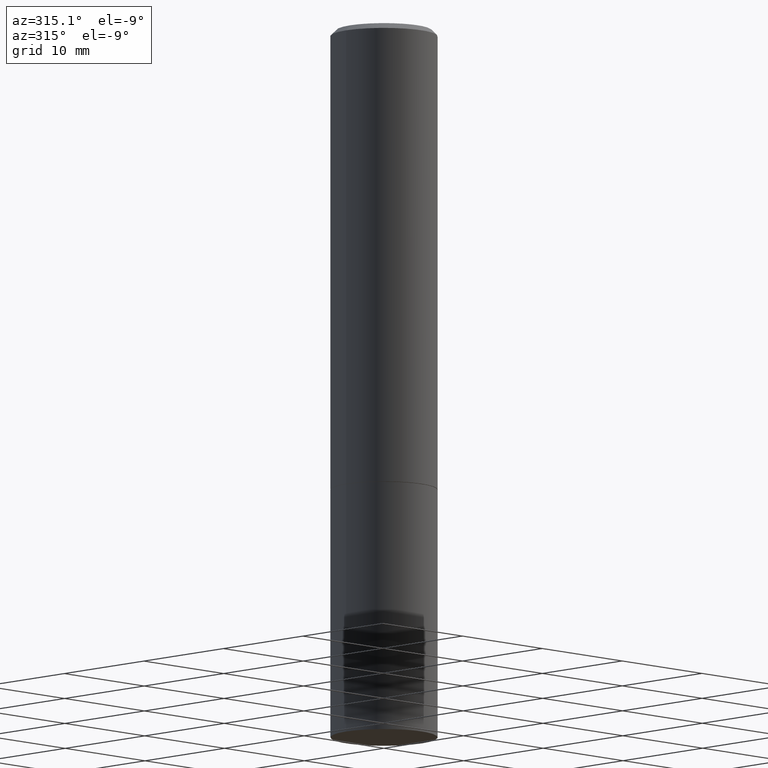
[diagram: clean part render]
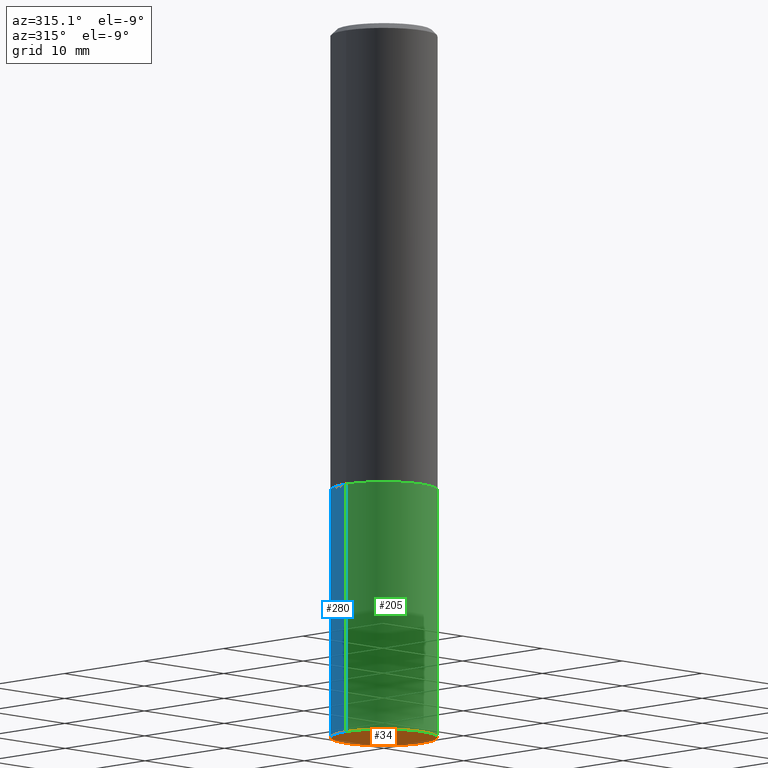
[diagram: same view with three faces highlighted in distinct colors, each labeled with its STEP entity id]
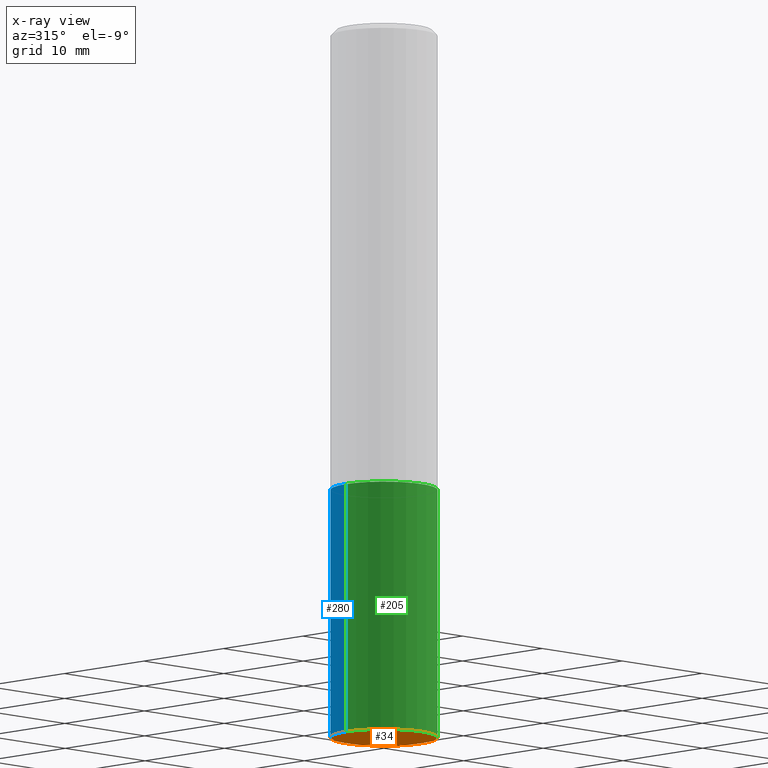
[diagram: x-ray of the same camera — body ghosted, the three highlighted faces saturated]
A machine part, auxiliary view with three faces highlighted in distinct colors.
The next image is the same camera in x-ray (body ghosted, the three faces saturated) — at least one of them is partly hidden behind the body in this view.
Their STEP definitions:

[orange] entity #34 — the highlighted planar face has unit normal (0, -0, -1).
#3 = DIRECTION ( 'NONE',  ( -2.445468806185136597E-29, 3.491481338843145583E-15, 1.000000000000000000 ) ) ;
#19 = CIRCLE ( 'NONE', #327, 0.1875000000000000278 ) ;
#28 = CARTESIAN_POINT ( 'NONE',  ( -0.1875000000000000278, -5.868912631813800729E-15, -2.500000000000000000 ) ) ;
#34 = ADVANCED_FACE ( 'NONE', ( #273 ), #310, .T. ) ;
#40 = EDGE_LOOP ( 'NONE', ( #52, #245 ) ) ;
#52 = ORIENTED_EDGE ( 'NONE', *, *, #173, .F. ) ;
#103 = CARTESIAN_POINT ( 'NONE',  ( 1.309305502066236145E-15, 0.1874999999999912847, -2.500000000000000444 ) ) ;
#135 = EDGE_CURVE ( 'NONE', #204, #272, #145, .T. ) ;
#145 = CIRCLE ( 'NONE', #150, 0.1875000000000000278 ) ;
#150 = AXIS2_PLACEMENT_3D ( 'NONE', #227, #341, #174 ) ;
#173 = EDGE_CURVE ( 'NONE', #272, #204, #19, .T. ) ;
#174 = DIRECTION ( 'NONE',  ( 1.000000000000000000, -6.982962677686266711E-15, 0.000000000000000000 ) ) ;
#180 = CARTESIAN_POINT ( 'NONE',  ( 0.1875000000000000278, -1.003800884917403995E-14, -2.500000000000000000 ) ) ;
#204 = VERTEX_POINT ( 'NONE', #28 ) ;
#227 = CARTESIAN_POINT ( 'NONE',  ( 6.113672015462842613E-29, -8.728703347107864943E-15, -2.500000000000000000 ) ) ;
#245 = ORIENTED_EDGE ( 'NONE', *, *, #135, .F. ) ;
#249 = DIRECTION ( 'NONE',  ( -1.000000000000000000, 6.982962677686265922E-15, -4.876176775795935793E-29 ) ) ;
#272 = VERTEX_POINT ( 'NONE', #180 ) ;
#273 = FACE_OUTER_BOUND ( 'NONE', #40, .T. ) ;
#279 = CARTESIAN_POINT ( 'NONE',  ( 6.113672015462842613E-29, -8.728703347107864943E-15, -2.500000000000000000 ) ) ;
#286 = DIRECTION ( 'NONE',  ( 1.000000000000000000, -6.982962677686266711E-15, 0.000000000000000000 ) ) ;
#310 = PLANE ( 'NONE',  #351 ) ;
#327 = AXIS2_PLACEMENT_3D ( 'NONE', #279, #3, #286 ) ;
#336 = DIRECTION ( 'NONE',  ( 2.438088387897960049E-29, -3.491481338843145188E-15, -1.000000000000000000 ) ) ;
#341 = DIRECTION ( 'NONE',  ( -2.445468806185136597E-29, 3.491481338843145583E-15, 1.000000000000000000 ) ) ;
#351 = AXIS2_PLACEMENT_3D ( 'NONE', #103, #336, #249 ) ;

[blue] entity #280 — the highlighted cylindrical surface (partial cylindrical patch) has radius 4.7625 mm, axis along (-0, 0, 1).
#3 = DIRECTION ( 'NONE',  ( -2.445468806185136597E-29, 3.491481338843145583E-15, 1.000000000000000000 ) ) ;
#4 = AXIS2_PLACEMENT_3D ( 'NONE', #323, #25, #89 ) ;
#14 = DIRECTION ( 'NONE',  ( 1.000000000000000000, -6.982962677686265922E-15, 4.876176775795935793E-29 ) ) ;
#19 = CIRCLE ( 'NONE', #327, 0.1875000000000000278 ) ;
#25 = DIRECTION ( 'NONE',  ( -2.445468806185136597E-29, 3.491481338843145583E-15, 1.000000000000000000 ) ) ;
#28 = CARTESIAN_POINT ( 'NONE',  ( -0.1875000000000000278, -5.868912631813800729E-15, -2.500000000000000000 ) ) ;
#41 = DIRECTION ( 'NONE',  ( -2.445468806185136877E-29, 3.491481338843145188E-15, 1.000000000000000000 ) ) ;
#47 = CARTESIAN_POINT ( 'NONE',  ( 0.1875000000000000278, -6.982962677686288010E-15, -1.625000000000000222 ) ) ;
#80 = EDGE_CURVE ( 'NONE', #335, #112, #181, .T. ) ;
#89 = DIRECTION ( 'NONE',  ( 1.000000000000000000, -6.982962677686266711E-15, 0.000000000000000000 ) ) ;
#104 = EDGE_CURVE ( 'NONE', #272, #335, #141, .T. ) ;
#106 = ORIENTED_EDGE ( 'NONE', *, *, #267, .T. ) ;
#112 = VERTEX_POINT ( 'NONE', #143 ) ;
#141 = LINE ( 'NONE', #171, #357 ) ;
#143 = CARTESIAN_POINT ( 'NONE',  ( -0.1875000000000000278, -5.868912631813800729E-15, -1.625000000000000222 ) ) ;
#147 = FACE_OUTER_BOUND ( 'NONE', #221, .T. ) ;
#171 = CARTESIAN_POINT ( 'NONE',  ( 0.1875000000000000278, -1.309305502066175008E-15, 9.142831454617381013E-30 ) ) ;
#173 = EDGE_CURVE ( 'NONE', #272, #204, #19, .T. ) ;
#176 = ORIENTED_EDGE ( 'NONE', *, *, #80, .F. ) ;
#177 = CARTESIAN_POINT ( 'NONE',  ( -0.1875000000000000278, 1.332267629550188046E-15, -9.223003294227947991E-30 ) ) ;
#180 = CARTESIAN_POINT ( 'NONE',  ( 0.1875000000000000278, -1.003800884917403995E-14, -2.500000000000000000 ) ) ;
#181 = CIRCLE ( 'NONE', #4, 0.1875000000000000278 ) ;
#185 = ORIENTED_EDGE ( 'NONE', *, *, #173, .T. ) ;
#200 = VECTOR ( 'NONE', #41, 39.37007874015748143 ) ;
#204 = VERTEX_POINT ( 'NONE', #28 ) ;
#212 = DIRECTION ( 'NONE',  ( -2.445468806185136597E-29, 3.491481338843145583E-15, 1.000000000000000000 ) ) ;
#221 = EDGE_LOOP ( 'NONE', ( #185, #106, #176, #247 ) ) ;
#243 = CYLINDRICAL_SURFACE ( 'NONE', #352, 0.1875000000000000278 ) ;
#247 = ORIENTED_EDGE ( 'NONE', *, *, #104, .F. ) ;
#267 = EDGE_CURVE ( 'NONE', #204, #112, #295, .T. ) ;
#272 = VERTEX_POINT ( 'NONE', #180 ) ;
#279 = CARTESIAN_POINT ( 'NONE',  ( 6.113672015462842613E-29, -8.728703347107864943E-15, -2.500000000000000000 ) ) ;
#280 = ADVANCED_FACE ( 'NONE', ( #147 ), #243, .T. ) ;
#286 = DIRECTION ( 'NONE',  ( 1.000000000000000000, -6.982962677686266711E-15, 0.000000000000000000 ) ) ;
#295 = LINE ( 'NONE', #177, #200 ) ;
#301 = CARTESIAN_POINT ( 'NONE',  ( 0.000000000000000000, 0.000000000000000000, 0.000000000000000000 ) ) ;
#323 = CARTESIAN_POINT ( 'NONE',  ( 3.973886810050848091E-29, -5.673657175620113002E-15, -1.625000000000000222 ) ) ;
#327 = AXIS2_PLACEMENT_3D ( 'NONE', #279, #3, #286 ) ;
#335 = VERTEX_POINT ( 'NONE', #47 ) ;
#348 = DIRECTION ( 'NONE',  ( -2.445468806185136877E-29, 3.491481338843145188E-15, 1.000000000000000000 ) ) ;
#352 = AXIS2_PLACEMENT_3D ( 'NONE', #301, #212, #14 ) ;
#357 = VECTOR ( 'NONE', #348, 39.37007874015748143 ) ;

[green] entity #205 — the highlighted cylindrical surface (partial cylindrical patch) has radius 4.7625 mm, axis along (-0, 0, 1).
#28 = CARTESIAN_POINT ( 'NONE',  ( -0.1875000000000000278, -5.868912631813800729E-15, -2.500000000000000000 ) ) ;
#41 = DIRECTION ( 'NONE',  ( -2.445468806185136877E-29, 3.491481338843145188E-15, 1.000000000000000000 ) ) ;
#43 = DIRECTION ( 'NONE',  ( -2.445468806185136597E-29, 3.491481338843145583E-15, 1.000000000000000000 ) ) ;
#47 = CARTESIAN_POINT ( 'NONE',  ( 0.1875000000000000278, -6.982962677686288010E-15, -1.625000000000000222 ) ) ;
#50 = CIRCLE ( 'NONE', #77, 0.1875000000000000278 ) ;
#76 = ORIENTED_EDGE ( 'NONE', *, *, #135, .T. ) ;
#77 = AXIS2_PLACEMENT_3D ( 'NONE', #96, #297, #359 ) ;
#96 = CARTESIAN_POINT ( 'NONE',  ( 3.973886810050848091E-29, -5.673657175620113002E-15, -1.625000000000000222 ) ) ;
#104 = EDGE_CURVE ( 'NONE', #272, #335, #141, .T. ) ;
#112 = VERTEX_POINT ( 'NONE', #143 ) ;
#124 = DIRECTION ( 'NONE',  ( 1.000000000000000000, -6.982962677686265922E-15, 4.876176775795935793E-29 ) ) ;
#135 = EDGE_CURVE ( 'NONE', #204, #272, #145, .T. ) ;
#137 = FACE_OUTER_BOUND ( 'NONE', #149, .T. ) ;
#141 = LINE ( 'NONE', #171, #357 ) ;
#143 = CARTESIAN_POINT ( 'NONE',  ( -0.1875000000000000278, -5.868912631813800729E-15, -1.625000000000000222 ) ) ;
#145 = CIRCLE ( 'NONE', #150, 0.1875000000000000278 ) ;
#149 = EDGE_LOOP ( 'NONE', ( #307, #76, #248, #251 ) ) ;
#150 = AXIS2_PLACEMENT_3D ( 'NONE', #227, #341, #174 ) ;
#171 = CARTESIAN_POINT ( 'NONE',  ( 0.1875000000000000278, -1.309305502066175008E-15, 9.142831454617381013E-30 ) ) ;
#174 = DIRECTION ( 'NONE',  ( 1.000000000000000000, -6.982962677686266711E-15, 0.000000000000000000 ) ) ;
#177 = CARTESIAN_POINT ( 'NONE',  ( -0.1875000000000000278, 1.332267629550188046E-15, -9.223003294227947991E-30 ) ) ;
#180 = CARTESIAN_POINT ( 'NONE',  ( 0.1875000000000000278, -1.003800884917403995E-14, -2.500000000000000000 ) ) ;
#200 = VECTOR ( 'NONE', #41, 39.37007874015748143 ) ;
#204 = VERTEX_POINT ( 'NONE', #28 ) ;
#205 = ADVANCED_FACE ( 'NONE', ( #137 ), #346, .T. ) ;
#218 = EDGE_CURVE ( 'NONE', #112, #335, #50, .T. ) ;
#227 = CARTESIAN_POINT ( 'NONE',  ( 6.113672015462842613E-29, -8.728703347107864943E-15, -2.500000000000000000 ) ) ;
#248 = ORIENTED_EDGE ( 'NONE', *, *, #104, .T. ) ;
#251 = ORIENTED_EDGE ( 'NONE', *, *, #218, .F. ) ;
#267 = EDGE_CURVE ( 'NONE', #204, #112, #295, .T. ) ;
#269 = CARTESIAN_POINT ( 'NONE',  ( 0.000000000000000000, 0.000000000000000000, 0.000000000000000000 ) ) ;
#272 = VERTEX_POINT ( 'NONE', #180 ) ;
#295 = LINE ( 'NONE', #177, #200 ) ;
#297 = DIRECTION ( 'NONE',  ( -2.445468806185136597E-29, 3.491481338843145583E-15, 1.000000000000000000 ) ) ;
#307 = ORIENTED_EDGE ( 'NONE', *, *, #267, .F. ) ;
#332 = AXIS2_PLACEMENT_3D ( 'NONE', #269, #43, #124 ) ;
#335 = VERTEX_POINT ( 'NONE', #47 ) ;
#341 = DIRECTION ( 'NONE',  ( -2.445468806185136597E-29, 3.491481338843145583E-15, 1.000000000000000000 ) ) ;
#346 = CYLINDRICAL_SURFACE ( 'NONE', #332, 0.1875000000000000278 ) ;
#348 = DIRECTION ( 'NONE',  ( -2.445468806185136877E-29, 3.491481338843145188E-15, 1.000000000000000000 ) ) ;
#357 = VECTOR ( 'NONE', #348, 39.37007874015748143 ) ;
#359 = DIRECTION ( 'NONE',  ( 1.000000000000000000, -6.982962677686266711E-15, 0.000000000000000000 ) ) ;